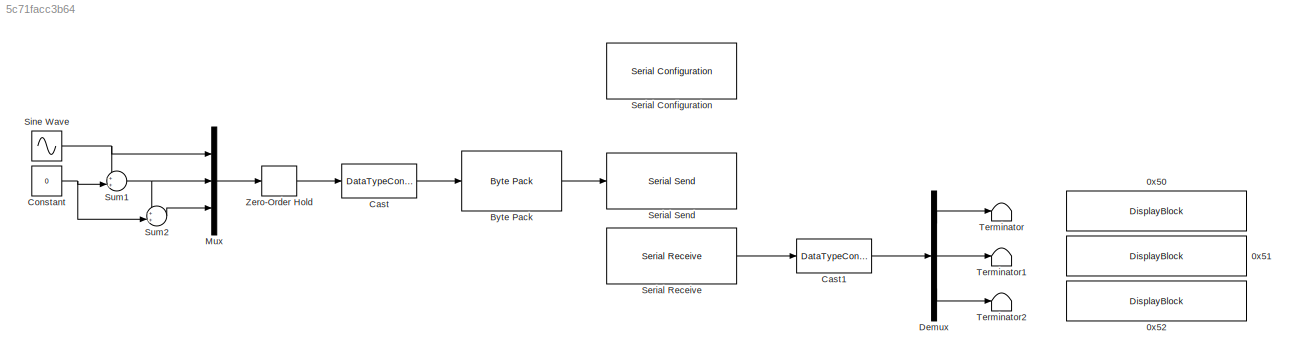
MODEL slx_5c71facc3b64
KIND model
CONFIG AbsTol = auto
CONFIG EnableMultiTasking = off
CONFIG FixedStep = auto
CONFIG MaxStep = auto
CONFIG MinStep = auto
CONFIG RelTol = 1e-3
CONFIG SampleTimeConstraint = Unconstrained
CONFIG SolverName = VariableStepAuto
CONFIG StartTime = 0.0
CONFIG StopTime = 50
BLOCK [DisplayBlock] 0x50
  LabelPosition = Hide
  NameLocation = right
  Transparency = 1
BLOCK [DisplayBlock] 0x51
  LabelPosition = Hide
  NameLocation = right
  Transparency = 1
BLOCK [DisplayBlock] 0x52
  LabelPosition = Hide
  NameLocation = right
  Transparency = 1
BLOCK [Reference] Byte Pack  REF=svdutilitieslib/Byte Pack
  SourceBlock = svdutilitieslib/Byte Pack
  SourceType = Byte pack
BLOCK [DataTypeConversion] Cast
  OutDataTypeStr = uint16
  RndMeth = Floor
  SaturateOnIntegerOverflow = off
BLOCK [DataTypeConversion] Cast1
  OutDataTypeStr = int32
  RndMeth = Floor
  SaturateOnIntegerOverflow = off
BLOCK [Constant] Constant
  Value = 0
BLOCK [Demux] Demux
  Outputs = 3
BLOCK [Mux] Mux
  DisplayOption = bar
  Inputs = 3
BLOCK [Reference] Serial Configuration  REF=instrumentseriallib/Serial Configuration
  LibrarySourceBlock = instrumentlib/Serial Configuration
  Priority = -200000
  SourceBlock = instrumentseriallib/Serial Configuration
  SourceType = system.SerialConfiguration
BLOCK [Reference] Serial Receive  REF=instrumentseriallib/Serial Receive
  LibrarySourceBlock = instrumentlib/Serial Receive
  Priority = 1
  SourceBlock = instrumentseriallib/Serial Receive
  SourceType = system.SerialReceive
BLOCK [Reference] Serial Send  REF=instrumentseriallib/Serial Send
  LibrarySourceBlock = instrumentlib/Serial Send
  Priority = 1
  SourceBlock = instrumentseriallib/Serial Send
  SourceType = system.SerialSend
BLOCK [Sin] Sine Wave
  Amplitude = 4096/2
  Bias = 2048
  Frequency = pi/10
  SampleTime = 0
BLOCK [Sum] Sum1
  Inputs = ++|
BLOCK [Sum] Sum2
  Inputs = ++|
BLOCK [Terminator] Terminator
BLOCK [Terminator] Terminator1
BLOCK [Terminator] Terminator2
BLOCK [ZeroOrderHold] Zero-Order Hold
  SampleTime = 5e-2
LINE Byte Pack:1 -> Serial Send:1
LINE Cast1:1 -> Demux:1
LINE Cast:1 -> Byte Pack:1
NET Constant:1 -> Sum1:2, Sum2:2
LINE Demux:1 -> Terminator:1
LINE Demux:2 -> Terminator1:1
LINE Demux:3 -> Terminator2:1
LINE Mux:1 -> Zero-Order Hold:1
LINE Serial Receive:1 -> Cast1:1
NET Sine Wave:1 -> Mux:1, Sum1:1
NET Sum1:1 -> Mux:2, Sum2:1
LINE Sum2:1 -> Mux:3
LINE Zero-Order Hold:1 -> Cast:1
note: NET lines group one-source signal fan-out (src -> all destinations, sorted); 1:1 wires keep LINE
